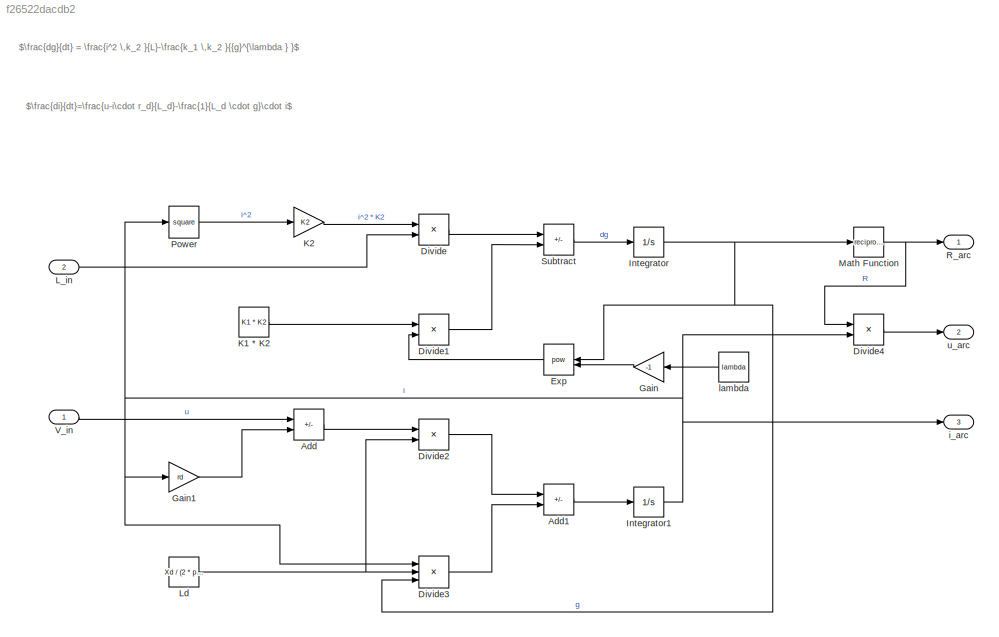
MODEL slx_f26522dacdb2
KIND model
CONFIG AbsTol = auto
CONFIG EnableMultiTasking = off
CONFIG FixedStep = 1e-5
CONFIG MaxStep = auto
CONFIG MinStep = auto
CONFIG RelTol = 1e-3
CONFIG SampleTimeConstraint = Unconstrained
CONFIG SolverName = ode14x
CONFIG StartTime = 0.0
CONFIG StopTime = 10.0
WORKSPACE source: mxarray member
WORKSPACE K1 = 221320
WORKSPACE K2 = 0.00072
WORKSPACE U_PhaseRMS = 243
WORKSPACE Xd = 0.003
WORKSPACE lambda = 2
WORKSPACE rd = 0.0004
BLOCK [Sum] Add
  IconShape = rectangular
  Inputs = +-
BLOCK [Sum] Add1
  IconShape = rectangular
  Inputs = +-
BLOCK [Product] Divide
  Inputs = */
BLOCK [Product] Divide1
  Inputs = */
BLOCK [Product] Divide2
  Inputs = */
BLOCK [Product] Divide3
  Inputs = *//
BLOCK [Product] Divide4
  Inputs = **
BLOCK [Math] Exp
  Operator = pow
BLOCK [Gain] Gain
  Gain = -1
BLOCK [Gain] Gain1
  Gain = rd
BLOCK [Integrator] Integrator
  InitialCondition = 50
  LimitOutput = on
  LowerSaturationLimit = 1e-3
  UpperSaturationLimit = 1e3
BLOCK [Integrator] Integrator1
BLOCK [Constant] K1 * K2
  NameLocation = left
  Value = K1 * K2
BLOCK [Gain] K2
  Gain = K2
  NameLocation = top
BLOCK [Inport] L_in
  Port = 2
BLOCK [Constant] Ld
  Value = Xd / (2 * pi * 50)
BLOCK [Math] Math Function
  NameLocation = top
  Operator = reciprocal
BLOCK [Math] Power
  Operator = square
BLOCK [Outport] R_arc
BLOCK [Sum] Subtract
  IconShape = rectangular
  Inputs = +-
BLOCK [Inport] V_in
BLOCK [Outport] i_arc
  Port = 3
BLOCK [Constant] lambda
  Value = lambda
BLOCK [Outport] u_arc
  Port = 2
ANNOTATION (root): $\frac{dg}{dt} = \frac{i^2 \,k_2 }{L}-\frac{k_1 \,k_2 }{{g}^{\lambda } }$
ANNOTATION (root): $\frac{di}{dt}=\frac{u-i\cdot r_d}{L_d}-\frac{1}{L_d \cdot g}\cdot i$
LINE Add1:1 -> Integrator1:1
LINE Add:1 -> Divide2:1
LINE Divide1:1 -> Subtract:2
LINE Divide2:1 -> Add1:1
LINE Divide3:1 -> Add1:2
LINE Divide4:1 -> u_arc:1
LINE Divide:1 -> Subtract:1
LINE Exp:1 -> Divide1:2
LINE Gain1:1 -> Add:2
LINE Gain:1 -> Exp:2
NET Integrator1:1 -> Divide3:1, Divide4:2, Gain1:1, Power:1, i_arc:1
NET Integrator:1 -> Divide3:3, Exp:1, Math Function:1
LINE K1 * K2:1 -> Divide1:1
LINE K2:1 -> Divide:1
LINE L_in:1 -> Divide:2
NET Ld:1 -> Divide2:2, Divide3:2
NET Math Function:1 -> Divide4:1, R_arc:1
LINE Power:1 -> K2:1
LINE Subtract:1 -> Integrator:1
LINE V_in:1 -> Add:1
LINE lambda:1 -> Gain:1
note: NET lines group one-source signal fan-out (src -> all destinations, sorted); 1:1 wires keep LINE
